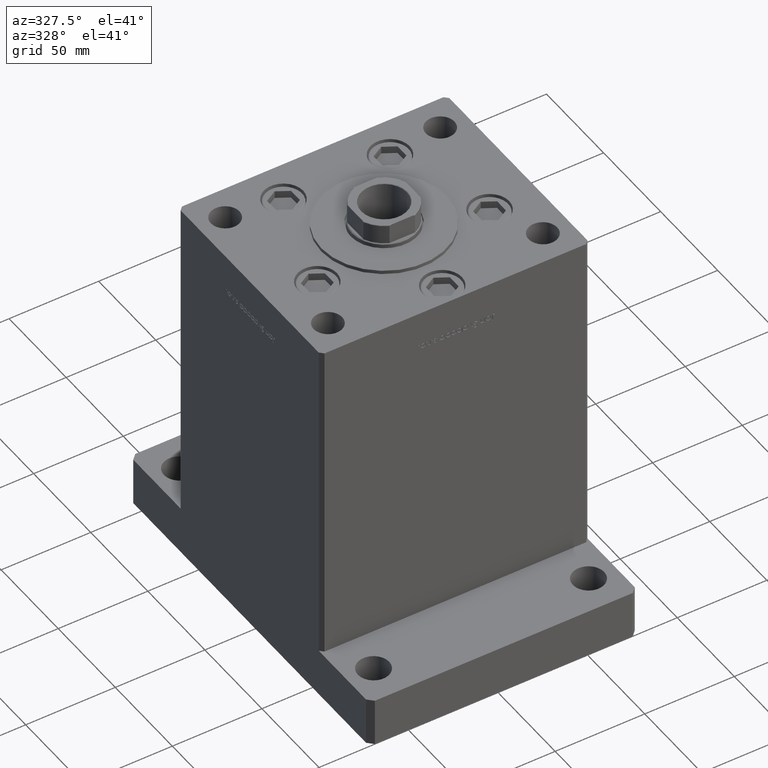
[diagram: clean part render]
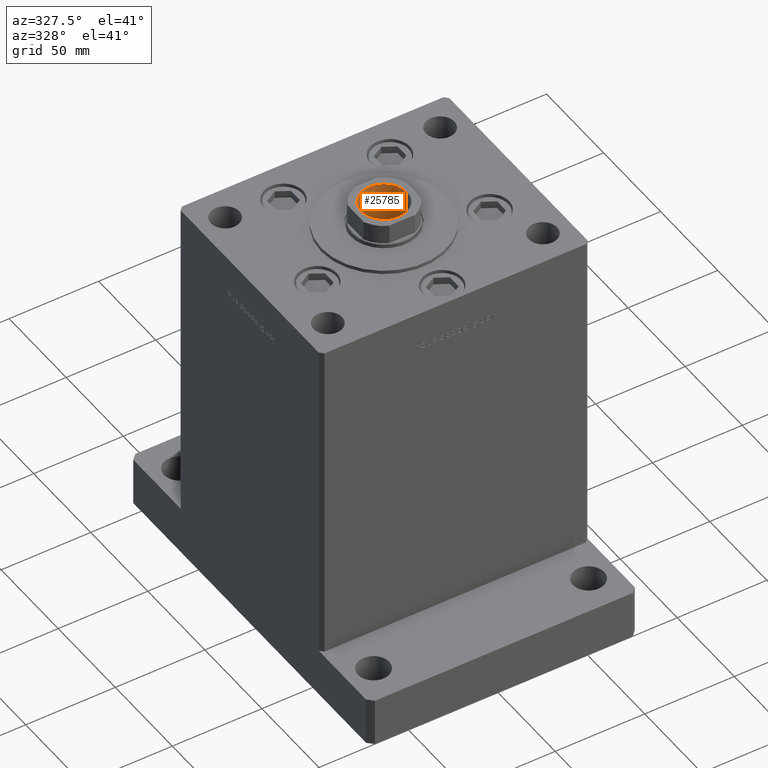
[diagram: same view with one face highlighted and labeled with its STEP entity id]
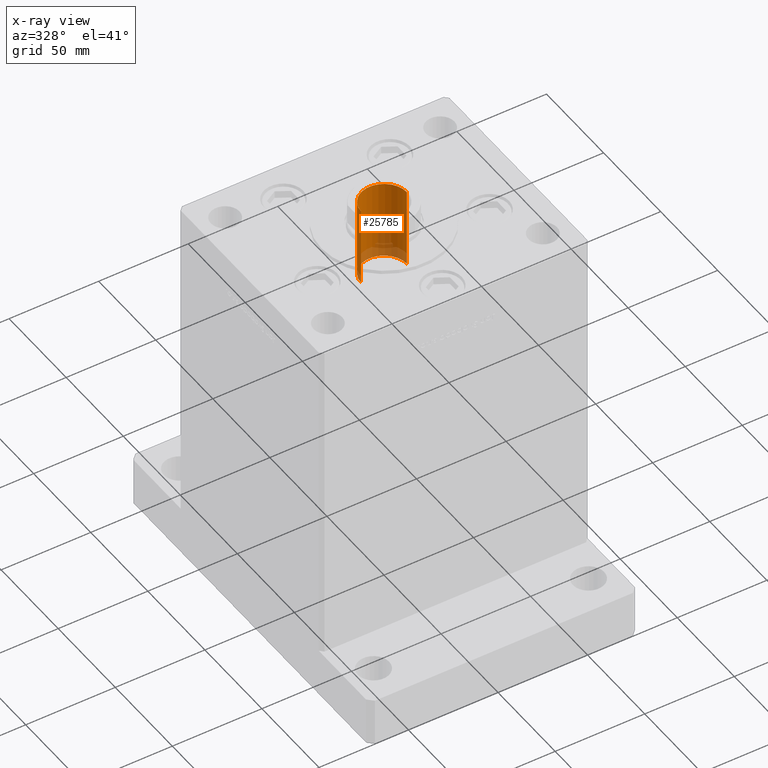
[diagram: x-ray of the same camera — body ghosted, the highlighted face saturated]
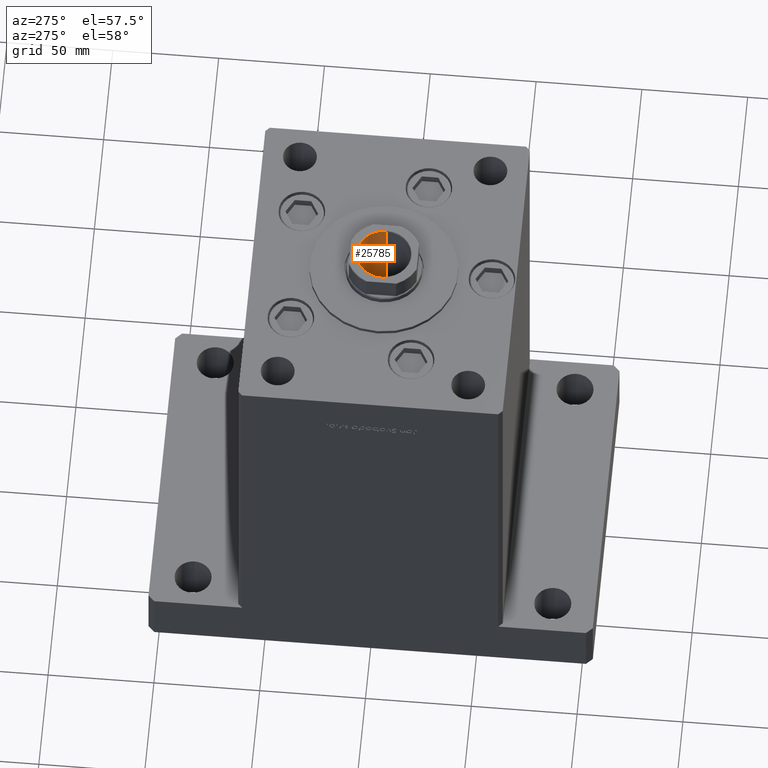
[diagram: same view with one face highlighted and labeled with its STEP entity id]
A machine part, auxiliary view. The second image highlights one B-rep face of the part: STEP entity #25785.
The next image is the same camera in x-ray: the body ghosted, the highlighted face saturated — about 21% of this face is hidden behind the body in this view.
A second angle (auxiliary view) of the same face is appended — the face is thin or edge-on in the first view.
In plain terms, the highlighted cylindrical surface (edge-blend (fillet) strip) has radius 12.75 mm, axis along (0, 0, 1).
Its self-contained STEP definition (entity closure, byte-faithful):
#412 = DIRECTION ( 'NONE',  ( 1.000000000000000000, 0.000000000000000000, 0.000000000000000000 ) ) ;
#459 = LINE ( 'NONE', #42274, #37637 ) ;
#1408 = VERTEX_POINT ( 'NONE', #17838 ) ;
#4550 = AXIS2_PLACEMENT_3D ( 'NONE', #38031, #9809, #24538 ) ;
#8372 = CIRCLE ( 'NONE', #23113, 12.74999999999999467 ) ;
#8751 = VECTOR ( 'NONE', #51091, 1000.000000000000000 ) ;
#9776 = CARTESIAN_POINT ( 'NONE',  ( -12.74999999999999112, 1.561424668912874125E-15, 122.5000000000000142 ) ) ;
#9809 = DIRECTION ( 'NONE',  ( -0.000000000000000000, -0.000000000000000000, 1.000000000000000000 ) ) ;
#11779 = ORIENTED_EDGE ( 'NONE', *, *, #40984, .T. ) ;
#17838 = CARTESIAN_POINT ( 'NONE',  ( -12.74999999999999467, 1.561424668912874519E-15, 167.2000000000000455 ) ) ;
#19262 = EDGE_CURVE ( 'NONE', #43781, #50377, #42506, .T. ) ;
#21512 = EDGE_CURVE ( 'NONE', #50377, #1408, #30736, .T. ) ;
#23113 = AXIS2_PLACEMENT_3D ( 'NONE', #39153, #25853, #26118 ) ;
#23434 = AXIS2_PLACEMENT_3D ( 'NONE', #33540, #25649, #412 ) ;
#24538 = DIRECTION ( 'NONE',  ( 1.000000000000000000, 0.000000000000000000, 0.000000000000000000 ) ) ;
#25649 = DIRECTION ( 'NONE',  ( -0.000000000000000000, -0.000000000000000000, 1.000000000000000000 ) ) ;
#25785 = ADVANCED_FACE ( 'NONE', ( #42118 ), #46716, .F. ) ;
#25853 = DIRECTION ( 'NONE',  ( 0.000000000000000000, 0.000000000000000000, 1.000000000000000000 ) ) ;
#26118 = DIRECTION ( 'NONE',  ( 1.000000000000000000, 0.000000000000000000, 0.000000000000000000 ) ) ;
#26658 = CARTESIAN_POINT ( 'NONE',  ( -12.74999999999999467, 1.561424668912874519E-15, 167.5000000000000000 ) ) ;
#30736 = LINE ( 'NONE', #26658, #8751 ) ;
#30840 = CARTESIAN_POINT ( 'NONE',  ( 12.74999999999999467, 0.000000000000000000, 167.2000000000000455 ) ) ;
#31434 = CARTESIAN_POINT ( 'NONE',  ( 12.74999999999999112, 0.000000000000000000, 122.5000000000000142 ) ) ;
#33540 = CARTESIAN_POINT ( 'NONE',  ( 0.000000000000000000, 0.000000000000000000, 122.5000000000000142 ) ) ;
#37637 = VECTOR ( 'NONE', #41473, 1000.000000000000000 ) ;
#38031 = CARTESIAN_POINT ( 'NONE',  ( 0.000000000000000000, 0.000000000000000000, 167.5000000000000000 ) ) ;
#39153 = CARTESIAN_POINT ( 'NONE',  ( 0.000000000000000000, 0.000000000000000000, 167.2000000000000455 ) ) ;
#40984 = EDGE_CURVE ( 'NONE', #46614, #1408, #8372, .T. ) ;
#41473 = DIRECTION ( 'NONE',  ( -0.000000000000000000, -0.000000000000000000, 1.000000000000000000 ) ) ;
#42118 = FACE_OUTER_BOUND ( 'NONE', #53102, .T. ) ;
#42274 = CARTESIAN_POINT ( 'NONE',  ( 12.74999999999999467, 0.000000000000000000, 167.5000000000000000 ) ) ;
#42506 = CIRCLE ( 'NONE', #23434, 12.74999999999999112 ) ;
#43781 = VERTEX_POINT ( 'NONE', #31434 ) ;
#44056 = ORIENTED_EDGE ( 'NONE', *, *, #47374, .T. ) ;
#46614 = VERTEX_POINT ( 'NONE', #30840 ) ;
#46655 = ORIENTED_EDGE ( 'NONE', *, *, #19262, .F. ) ;
#46716 = CYLINDRICAL_SURFACE ( 'NONE', #4550, 12.74999999999999467 ) ;
#47374 = EDGE_CURVE ( 'NONE', #43781, #46614, #459, .T. ) ;
#48627 = ORIENTED_EDGE ( 'NONE', *, *, #21512, .F. ) ;
#50377 = VERTEX_POINT ( 'NONE', #9776 ) ;
#51091 = DIRECTION ( 'NONE',  ( -0.000000000000000000, -0.000000000000000000, 1.000000000000000000 ) ) ;
#53102 = EDGE_LOOP ( 'NONE', ( #48627, #46655, #44056, #11779 ) ) ;